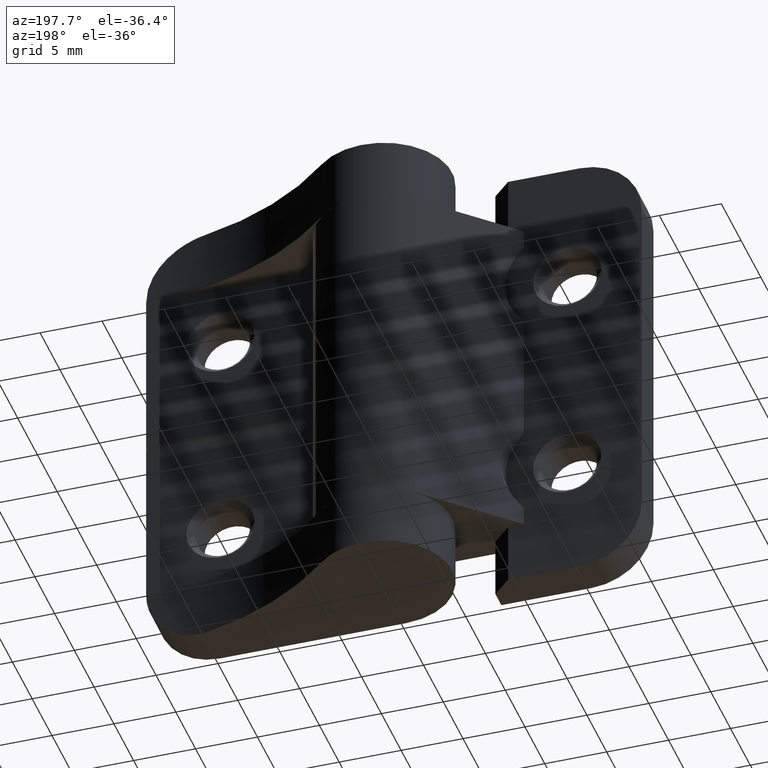
[diagram: clean part render]
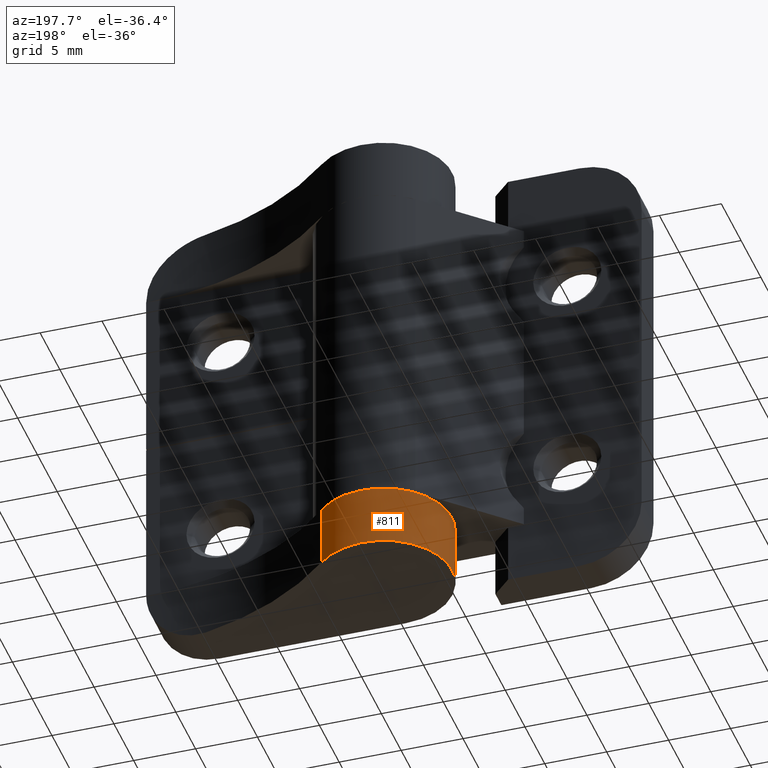
[diagram: same view with one face highlighted and labeled with its STEP entity id]
A machine part, auxiliary view. The second image highlights one B-rep face of the part: STEP entity #811.
In plain terms, the highlighted cylindrical surface (partial cylindrical patch) has radius 5.5 mm, axis along (0, 0, 1).
Its self-contained STEP definition (entity closure, byte-faithful):
#101=LINE('',#1292,#174);
#104=LINE('',#1321,#177);
#174=VECTOR('',#1047,5.);
#177=VECTOR('',#1068,5.);
#259=FACE_OUTER_BOUND('',#318,.T.);
#318=EDGE_LOOP('',(#696,#697,#698,#699));
#358=CIRCLE('',#886,5.5);
#359=CIRCLE('',#887,5.5);
#415=VERTEX_POINT('',#1289);
#416=VERTEX_POINT('',#1291);
#422=VERTEX_POINT('',#1318);
#423=VERTEX_POINT('',#1320);
#507=EDGE_CURVE('',#415,#416,#101,.T.);
#516=EDGE_CURVE('',#422,#423,#104,.T.);
#521=EDGE_CURVE('',#415,#423,#358,.T.);
#522=EDGE_CURVE('',#416,#422,#359,.T.);
#696=ORIENTED_EDGE('',*,*,#521,.T.);
#697=ORIENTED_EDGE('',*,*,#516,.F.);
#698=ORIENTED_EDGE('',*,*,#522,.F.);
#699=ORIENTED_EDGE('',*,*,#507,.F.);
#775=CYLINDRICAL_SURFACE('',#885,5.5);
#811=ADVANCED_FACE('',(#259),#775,.T.);
#885=AXIS2_PLACEMENT_3D('',#1329,#1078,#1079);
#886=AXIS2_PLACEMENT_3D('',#1330,#1080,#1081);
#887=AXIS2_PLACEMENT_3D('',#1331,#1082,#1083);
#1047=DIRECTION('',(0.,0.,-1.));
#1068=DIRECTION('',(0.,0.,1.));
#1078=DIRECTION('center_axis',(0.,0.,1.));
#1079=DIRECTION('ref_axis',(-0.689655172413793,-0.724137931034483,0.));
#1080=DIRECTION('center_axis',(3.09426989639187E-16,0.,-1.));
#1081=DIRECTION('ref_axis',(-0.689655172413793,-0.724137931034483,-2.13397923889094E-16));
#1082=DIRECTION('center_axis',(0.,0.,-1.));
#1083=DIRECTION('ref_axis',(-0.689655172413793,-0.724137931034483,0.));
#1289=CARTESIAN_POINT('',(0.,-5.5,-14.));
#1291=CARTESIAN_POINT('',(0.,-5.5,-19.));
#1292=CARTESIAN_POINT('',(0.,-5.5,0.));
#1318=CARTESIAN_POINT('',(3.79310344827586,3.98275862068965,-19.));
#1320=CARTESIAN_POINT('',(3.79310344827586,3.98275862068965,-14.));
#1321=CARTESIAN_POINT('',(3.79310344827586,3.98275862068965,0.));
#1329=CARTESIAN_POINT('Origin',(0.,0.,0.));
#1330=CARTESIAN_POINT('Origin',(0.,0.,-14.));
#1331=CARTESIAN_POINT('Origin',(0.,0.,-19.));